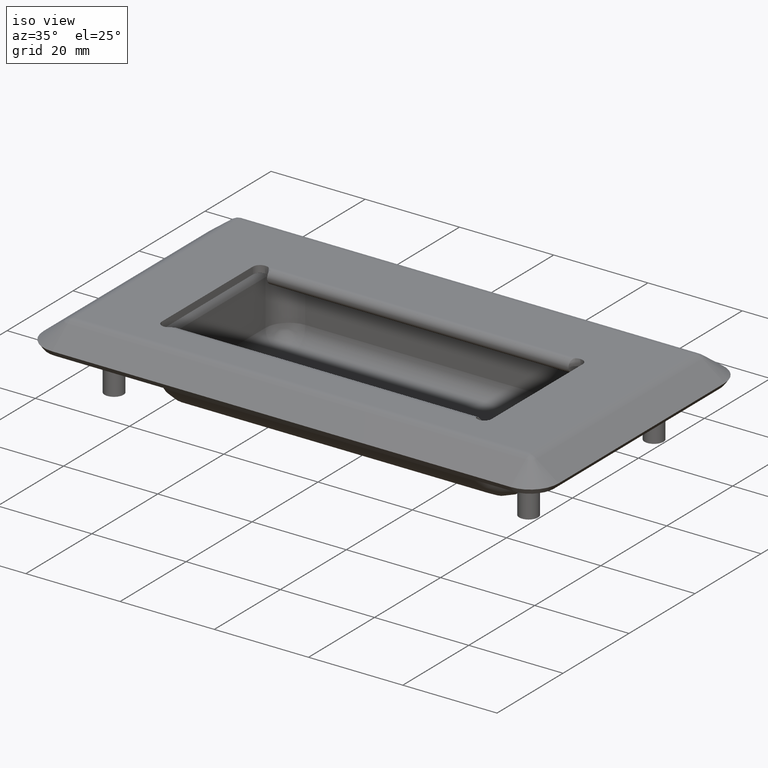
[diagram: clean part render]
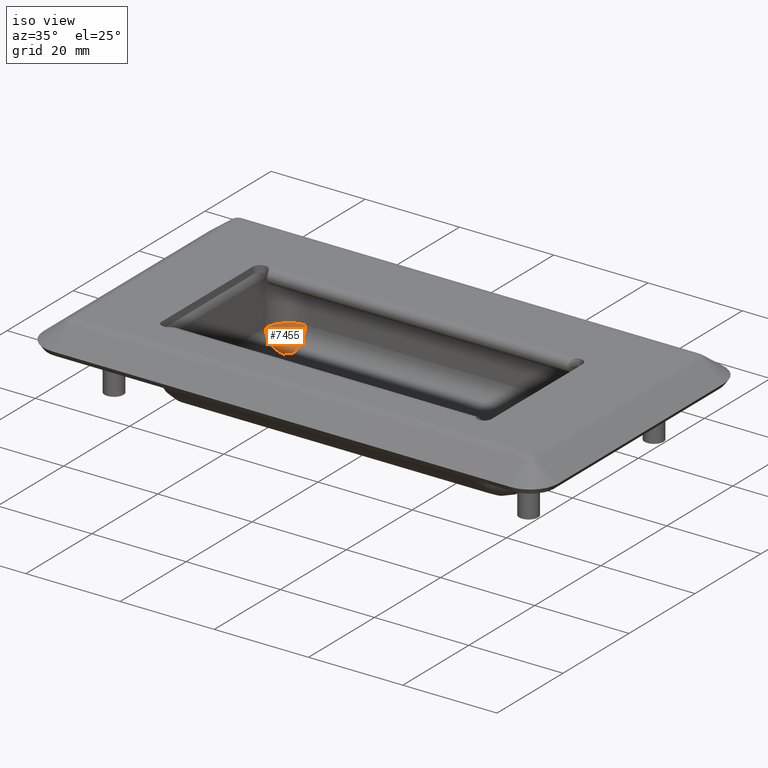
[diagram: same view with one face highlighted and labeled with its STEP entity id]
A machine part, iso view. The second image highlights one B-rep face of the part: STEP entity #7455.
In plain terms, the highlighted face is a freeform B-spline surface patch.
Its self-contained STEP definition (entity closure, byte-faithful):
#65=(
BOUNDED_SURFACE()
B_SPLINE_SURFACE(2,2,((#14270,#14271,#14272),(#14273,#14274,#14275),(#14276,
#14277,#14278)),.UNSPECIFIED.,.F.,.F.,.F.)
B_SPLINE_SURFACE_WITH_KNOTS((3,3),(3,3),(-1.57079632679502,-6.58545319093218E-14),
(-1.57079632679539,5.1509429832348E-13),.UNSPECIFIED.)
GEOMETRIC_REPRESENTATION_ITEM()
RATIONAL_B_SPLINE_SURFACE(((1.,0.707106781186191,1.),(0.70710678118653,
0.499999999999736,0.70710678118653),(1.,0.707106781186191,1.)))
REPRESENTATION_ITEM('')
SURFACE()
);
#1959=FACE_OUTER_BOUND('',#2467,.T.);
#2467=EDGE_LOOP('',(#5947,#5948,#5949,#5950));
#2903=CIRCLE('',#8125,4.);
#2904=CIRCLE('',#8126,4.);
#2905=CIRCLE('',#8127,0.999999999999999);
#2906=CIRCLE('',#8128,5.);
#3298=VERTEX_POINT('',#13537);
#3454=VERTEX_POINT('',#14265);
#3455=VERTEX_POINT('',#14266);
#3456=VERTEX_POINT('',#14279);
#4312=EDGE_CURVE('',#3454,#3455,#2903,.T.);
#4315=EDGE_CURVE('',#3298,#3456,#2904,.T.);
#4316=EDGE_CURVE('',#3456,#3455,#2905,.T.);
#4317=EDGE_CURVE('',#3454,#3298,#2906,.T.);
#5947=ORIENTED_EDGE('',*,*,#4315,.T.);
#5948=ORIENTED_EDGE('',*,*,#4316,.T.);
#5949=ORIENTED_EDGE('',*,*,#4312,.F.);
#5950=ORIENTED_EDGE('',*,*,#4317,.T.);
#7455=ADVANCED_FACE('',(#1959),#65,.T.);
#8125=AXIS2_PLACEMENT_3D('',#14267,#9496,#9497);
#8126=AXIS2_PLACEMENT_3D('',#14280,#9500,#9501);
#8127=AXIS2_PLACEMENT_3D('',#14281,#9502,#9503);
#8128=AXIS2_PLACEMENT_3D('',#14282,#9504,#9505);
#9496=DIRECTION('center_axis',(1.,0.,0.));
#9497=DIRECTION('ref_axis',(0.,-1.,-3.7470027081099E-16));
#9500=DIRECTION('center_axis',(0.,1.,3.7470027081099E-16));
#9501=DIRECTION('ref_axis',(1.,0.,0.));
#9502=DIRECTION('center_axis',(0.,3.7470027081099E-16,-1.));
#9503=DIRECTION('ref_axis',(0.707106781186548,-0.707106781186547,-2.64953102402887E-16));
#9504=DIRECTION('center_axis',(0.,-3.7470027081099E-16,1.));
#9505=DIRECTION('ref_axis',(0.707106781186548,-0.707106781186547,-2.64953102402887E-16));
#13537=CARTESIAN_POINT('',(36.1,-15.6,-56.8));
#14265=CARTESIAN_POINT('',(31.1,-20.6,-56.8));
#14266=CARTESIAN_POINT('',(31.1,-16.6,-60.8));
#14267=CARTESIAN_POINT('Origin',(31.1,-16.6,-56.8));
#14270=CARTESIAN_POINT('Ctrl Pts',(31.1000000000005,-16.5999999999998,-60.8));
#14271=CARTESIAN_POINT('Ctrl Pts',(32.1000000000003,-16.6000000000003,-60.7999999999999));
#14272=CARTESIAN_POINT('Ctrl Pts',(32.0999999999998,-15.6000000000005,-60.8));
#14273=CARTESIAN_POINT('Ctrl Pts',(31.1000000000005,-20.6,-60.8000000000002));
#14274=CARTESIAN_POINT('Ctrl Pts',(36.1000000000025,-20.6000000000025,-60.7999999999998));
#14275=CARTESIAN_POINT('Ctrl Pts',(36.1,-15.6000000000005,-60.8000000000002));
#14276=CARTESIAN_POINT('Ctrl Pts',(31.1000000000002,-20.5999999999999,-56.8));
#14277=CARTESIAN_POINT('Ctrl Pts',(36.1000000000025,-20.6000000000025,-56.7999999999996));
#14278=CARTESIAN_POINT('Ctrl Pts',(36.0999999999999,-15.6000000000002,-56.8));
#14279=CARTESIAN_POINT('',(32.1,-15.6,-60.8));
#14280=CARTESIAN_POINT('Origin',(32.1,-15.6,-56.8));
#14281=CARTESIAN_POINT('Origin',(31.1,-15.6,-60.8));
#14282=CARTESIAN_POINT('Origin',(31.1,-15.6,-56.8));